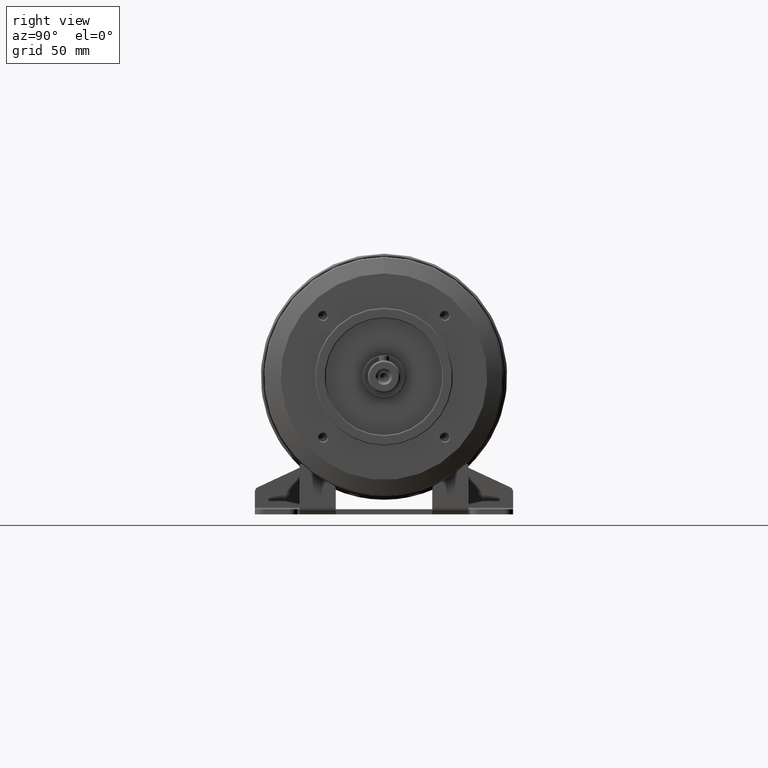
[diagram: clean part render]
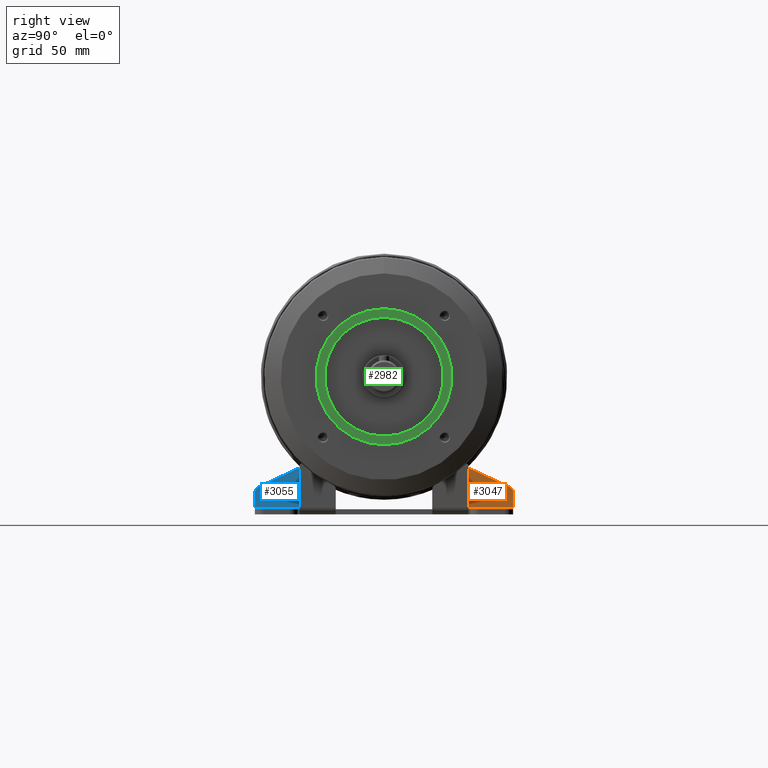
[diagram: same view with three faces highlighted in distinct colors, each labeled with its STEP entity id]
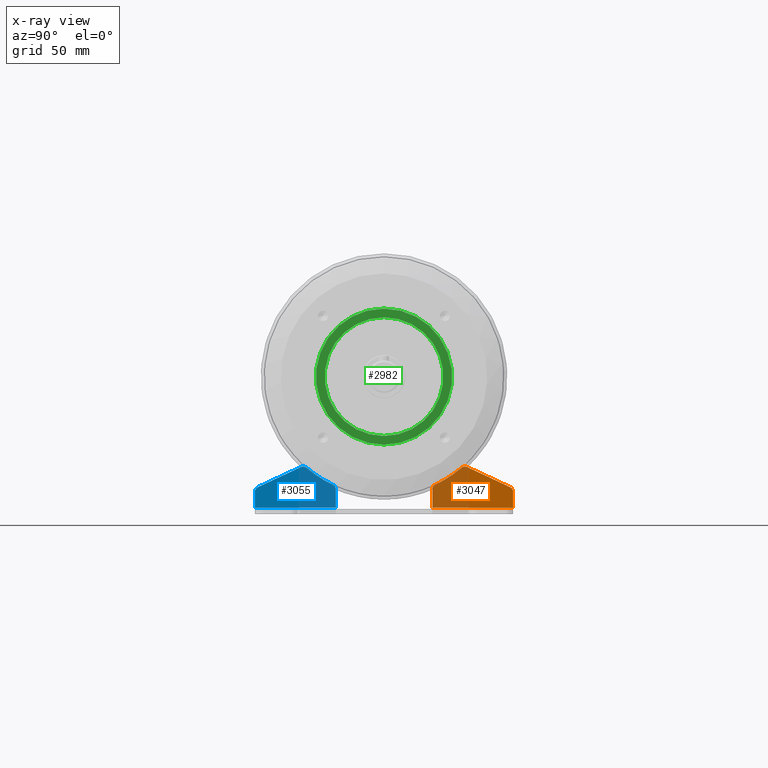
[diagram: x-ray of the same camera — body ghosted, the three highlighted faces saturated]
A machine part, right view with three faces highlighted in distinct colors.
The next image is the same camera in x-ray (body ghosted, the three faces saturated) — at least one of them is partly hidden behind the body in this view.
Their STEP definitions:

[orange] entity #3047 — the highlighted planar face has unit normal (-1, 0, -0).
#73=PLANE('',#3328);
#226=LINE('',#4767,#388);
#230=LINE('',#4790,#392);
#231=LINE('',#4792,#393);
#232=LINE('',#4795,#394);
#388=VECTOR('',#3922,1000.);
#392=VECTOR('',#3944,1000.);
#393=VECTOR('',#3945,1000.);
#394=VECTOR('',#3948,1000.);
#799=ORIENTED_EDGE('',*,*,#1310,.T.);
#800=ORIENTED_EDGE('',*,*,#1311,.T.);
#801=ORIENTED_EDGE('',*,*,#1312,.T.);
#802=ORIENTED_EDGE('',*,*,#1313,.F.);
#803=ORIENTED_EDGE('',*,*,#1301,.T.);
#804=ORIENTED_EDGE('',*,*,#1314,.T.);
#805=ORIENTED_EDGE('',*,*,#1315,.T.);
#806=ORIENTED_EDGE('',*,*,#1316,.T.);
#1301=EDGE_CURVE('',#1601,#1600,#226,.T.);
#1310=EDGE_CURVE('',#1608,#1609,#1762,.T.);
#1311=EDGE_CURVE('',#1609,#1610,#1763,.F.);
#1312=EDGE_CURVE('',#1610,#1611,#230,.T.);
#1313=EDGE_CURVE('',#1601,#1611,#231,.T.);
#1314=EDGE_CURVE('',#1600,#1612,#1764,.F.);
#1315=EDGE_CURVE('',#1612,#1613,#232,.T.);
#1316=EDGE_CURVE('',#1613,#1608,#1765,.F.);
#1600=VERTEX_POINT('',#4766);
#1601=VERTEX_POINT('',#4768);
#1608=VERTEX_POINT('',#4786);
#1609=VERTEX_POINT('',#4787);
#1610=VERTEX_POINT('',#4789);
#1611=VERTEX_POINT('',#4791);
#1612=VERTEX_POINT('',#4794);
#1613=VERTEX_POINT('',#4796);
#1762=CIRCLE('',#3329,69.5);
#1763=CIRCLE('',#3330,3.);
#1764=CIRCLE('',#3331,3.);
#1765=CIRCLE('',#3332,3.);
#1966=EDGE_LOOP('',(#799,#800,#801,#802,#803,#804,#805,#806));
#2203=FACE_BOUND('',#1966,.T.);
#3047=ADVANCED_FACE('',(#2203),#73,.F.);
#3328=AXIS2_PLACEMENT_3D('',#4784,#3938,#3939);
#3329=AXIS2_PLACEMENT_3D('',#4785,#3940,#3941);
#3330=AXIS2_PLACEMENT_3D('',#4788,#3942,#3943);
#3331=AXIS2_PLACEMENT_3D('',#4793,#3946,#3947);
#3332=AXIS2_PLACEMENT_3D('',#4797,#3949,#3950);
#3922=DIRECTION('',(6.12323399573677E-17,0.,1.));
#3938=DIRECTION('',(-1.,0.,6.12323399573677E-17));
#3939=DIRECTION('',(6.12323399573677E-17,0.,1.));
#3940=DIRECTION('',(-1.,0.,6.12323399573677E-17));
#3941=DIRECTION('',(0.,1.,0.));
#3942=DIRECTION('',(-1.,0.,6.12323399573677E-17));
#3943=DIRECTION('',(6.12323399573677E-17,0.,1.));
#3944=DIRECTION('',(-6.12323399573677E-17,-2.48655935949864E-16,-1.));
#3945=DIRECTION('',(0.,-1.,0.));
#3946=DIRECTION('',(-1.,0.,6.12323399573677E-17));
#3947=DIRECTION('',(6.12323399573677E-17,0.,1.));
#3948=DIRECTION('',(2.58779050750983E-17,-0.90630778703665,0.422618261740699));
#3949=DIRECTION('',(-1.,0.,6.12323399573677E-17));
#3950=DIRECTION('',(6.12323399573677E-17,0.,1.));
#4766=CARTESIAN_POINT('',(-74.,75.,13.0887892175775));
#4767=CARTESIAN_POINT('',(-74.,75.,2.43705765483908));
#4768=CARTESIAN_POINT('',(-74.,75.,4.));
#4784=CARTESIAN_POINT('',(-74.,2.81668763803891E-15,80.));
#4785=CARTESIAN_POINT('',(-74.,2.81668763803891E-15,80.));
#4786=CARTESIAN_POINT('',(-74.,45.0176044882026,27.0503514067962));
#4787=CARTESIAN_POINT('',(-74.,29.7172413793103,17.1737669058234));
#4788=CARTESIAN_POINT('',(-74.,31.,14.4618431751396));
#4789=CARTESIAN_POINT('',(-74.,28.,14.4618431751396));
#4790=CARTESIAN_POINT('',(-74.,28.,2.43705765483908));
#4791=CARTESIAN_POINT('',(-74.,28.,4.));
#4792=CARTESIAN_POINT('',(-74.,75.,4.));
#4793=CARTESIAN_POINT('',(-74.,72.,13.0887892175775));
#4794=CARTESIAN_POINT('',(-74.,73.2678547852221,15.8077125786875));
#4795=CARTESIAN_POINT('',(-74.,75.,15.));
#4796=CARTESIAN_POINT('',(-74.,48.2286652225557,27.4836784257535));
#4797=CARTESIAN_POINT('',(-74.,46.9608104373336,24.7647550646436));

[blue] entity #3055 — the highlighted planar face has unit normal (-1, 0, -0).
#78=PLANE('',#3348);
#220=LINE('',#4752,#382);
#241=LINE('',#4817,#403);
#245=LINE('',#4840,#407);
#246=LINE('',#4843,#408);
#382=VECTOR('',#3910,1000.);
#403=VECTOR('',#3975,1000.);
#407=VECTOR('',#4001,1000.);
#408=VECTOR('',#4004,1000.);
#847=ORIENTED_EDGE('',*,*,#1327,.T.);
#848=ORIENTED_EDGE('',*,*,#1337,.T.);
#849=ORIENTED_EDGE('',*,*,#1338,.T.);
#850=ORIENTED_EDGE('',*,*,#1339,.T.);
#851=ORIENTED_EDGE('',*,*,#1340,.T.);
#852=ORIENTED_EDGE('',*,*,#1341,.T.);
#853=ORIENTED_EDGE('',*,*,#1293,.T.);
#854=ORIENTED_EDGE('',*,*,#1342,.F.);
#1293=EDGE_CURVE('',#1595,#1594,#220,.T.);
#1327=EDGE_CURVE('',#1617,#1616,#241,.T.);
#1337=EDGE_CURVE('',#1616,#1622,#1774,.F.);
#1338=EDGE_CURVE('',#1622,#1623,#1775,.T.);
#1339=EDGE_CURVE('',#1623,#1624,#1776,.F.);
#1340=EDGE_CURVE('',#1624,#1625,#245,.T.);
#1341=EDGE_CURVE('',#1625,#1595,#1777,.F.);
#1342=EDGE_CURVE('',#1617,#1594,#246,.T.);
#1594=VERTEX_POINT('',#4751);
#1595=VERTEX_POINT('',#4753);
#1616=VERTEX_POINT('',#4816);
#1617=VERTEX_POINT('',#4818);
#1622=VERTEX_POINT('',#4835);
#1623=VERTEX_POINT('',#4837);
#1624=VERTEX_POINT('',#4839);
#1625=VERTEX_POINT('',#4841);
#1774=CIRCLE('',#3349,3.);
#1775=CIRCLE('',#3350,69.5);
#1776=CIRCLE('',#3351,3.);
#1777=CIRCLE('',#3352,3.);
#1974=EDGE_LOOP('',(#847,#848,#849,#850,#851,#852,#853,#854));
#2211=FACE_BOUND('',#1974,.T.);
#3055=ADVANCED_FACE('',(#2211),#78,.F.);
#3348=AXIS2_PLACEMENT_3D('',#4833,#3993,#3994);
#3349=AXIS2_PLACEMENT_3D('',#4834,#3995,#3996);
#3350=AXIS2_PLACEMENT_3D('',#4836,#3997,#3998);
#3351=AXIS2_PLACEMENT_3D('',#4838,#3999,#4000);
#3352=AXIS2_PLACEMENT_3D('',#4842,#4002,#4003);
#3910=DIRECTION('',(-6.12323399573677E-17,0.,-1.));
#3975=DIRECTION('',(6.12323399573677E-17,-2.48655935949864E-16,1.));
#3993=DIRECTION('',(-1.,0.,6.12323399573677E-17));
#3994=DIRECTION('',(6.12323399573677E-17,0.,1.));
#3995=DIRECTION('',(-1.,0.,6.12323399573677E-17));
#3996=DIRECTION('',(6.12323399573677E-17,0.,1.));
#3997=DIRECTION('',(-1.,0.,6.12323399573677E-17));
#3998=DIRECTION('',(0.,-1.,0.));
#3999=DIRECTION('',(-1.,0.,6.12323399573677E-17));
#4000=DIRECTION('',(6.12323399573677E-17,0.,1.));
#4001=DIRECTION('',(-2.58779050750983E-17,-0.90630778703665,-0.422618261740699));
#4002=DIRECTION('',(-1.,0.,6.12323399573677E-17));
#4003=DIRECTION('',(6.12323399573677E-17,0.,1.));
#4004=DIRECTION('',(0.,-1.,1.84545050635831E-17));
#4751=CARTESIAN_POINT('',(-74.,-75.,4.));
#4752=CARTESIAN_POINT('',(-74.,-75.,15.));
#4753=CARTESIAN_POINT('',(-74.,-75.,13.0887892175775));
#4816=CARTESIAN_POINT('',(-74.,-28.,14.4618431751396));
#4817=CARTESIAN_POINT('',(-74.,-28.,2.43705765483908));
#4818=CARTESIAN_POINT('',(-74.,-28.,4.));
#4833=CARTESIAN_POINT('',(-74.,-2.81668763803891E-15,80.));
#4834=CARTESIAN_POINT('',(-74.,-31.,14.4618431751396));
#4835=CARTESIAN_POINT('',(-74.,-29.7172413793103,17.1737669058235));
#4836=CARTESIAN_POINT('',(-74.,-2.81668763803891E-15,80.));
#4837=CARTESIAN_POINT('',(-74.,-45.0176044882026,27.0503514067962));
#4838=CARTESIAN_POINT('',(-74.,-46.9608104373336,24.7647550646436));
#4839=CARTESIAN_POINT('',(-74.,-48.2286652225557,27.4836784257535));
#4840=CARTESIAN_POINT('',(-74.,-46.4578672595983,28.3094150769258));
#4841=CARTESIAN_POINT('',(-74.,-73.2678547852221,15.8077125786875));
#4842=CARTESIAN_POINT('',(-74.,-72.,13.0887892175775));
#4843=CARTESIAN_POINT('',(-74.,-28.,4.));

[green] entity #2982 — the highlighted planar face has unit normal (1, 0, 0).
#47=PLANE('',#3194);
#561=ORIENTED_EDGE('',*,*,#1171,.T.);
#562=ORIENTED_EDGE('',*,*,#1172,.T.);
#1171=EDGE_CURVE('',#1475,#1475,#1694,.F.);
#1172=EDGE_CURVE('',#1476,#1476,#1695,.T.);
#1475=VERTEX_POINT('',#4448);
#1476=VERTEX_POINT('',#4450);
#1694=CIRCLE('',#3195,34.5);
#1695=CIRCLE('',#3196,39.5);
#1850=EDGE_LOOP('',(#561));
#1851=EDGE_LOOP('',(#562));
#2082=FACE_BOUND('',#1850,.T.);
#2083=FACE_BOUND('',#1851,.T.);
#2982=ADVANCED_FACE('',(#2082,#2083),#47,.T.);
#3194=AXIS2_PLACEMENT_3D('',#4446,#3599,#3600);
#3195=AXIS2_PLACEMENT_3D('',#4447,#3601,#3602);
#3196=AXIS2_PLACEMENT_3D('',#4449,#3603,#3604);
#3599=DIRECTION('',(1.,0.,0.));
#3600=DIRECTION('',(0.,0.,-1.));
#3601=DIRECTION('',(1.,0.,0.));
#3602=DIRECTION('',(0.,0.,-1.));
#3603=DIRECTION('',(1.,0.,0.));
#3604=DIRECTION('',(0.,0.,-1.));
#4446=CARTESIAN_POINT('',(3.,0.,40.));
#4447=CARTESIAN_POINT('',(3.,0.,0.));
#4448=CARTESIAN_POINT('',(3.,0.,-34.5));
#4449=CARTESIAN_POINT('',(3.,0.,0.));
#4450=CARTESIAN_POINT('',(3.,0.,-39.5));